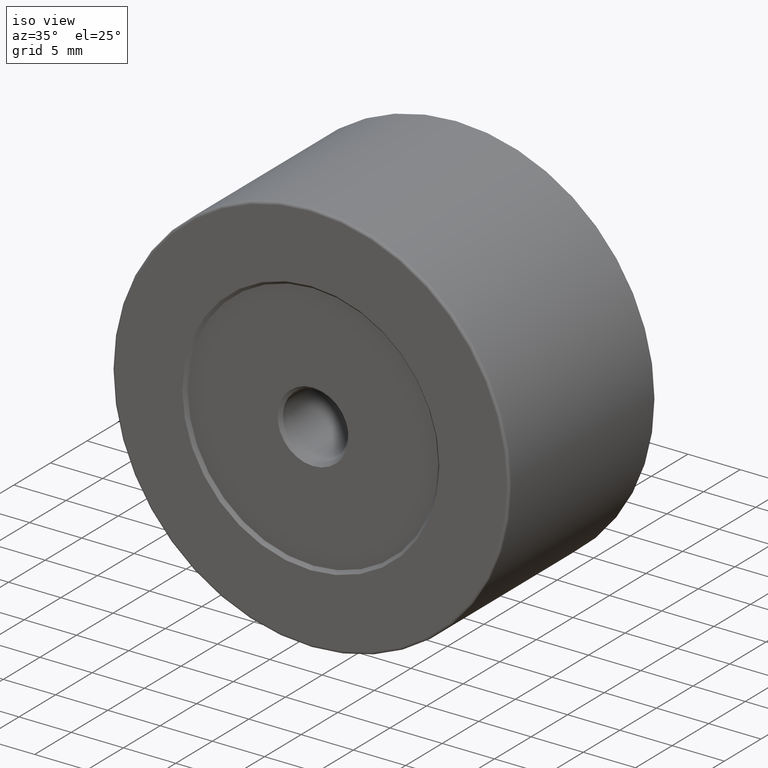
[diagram: clean part render]
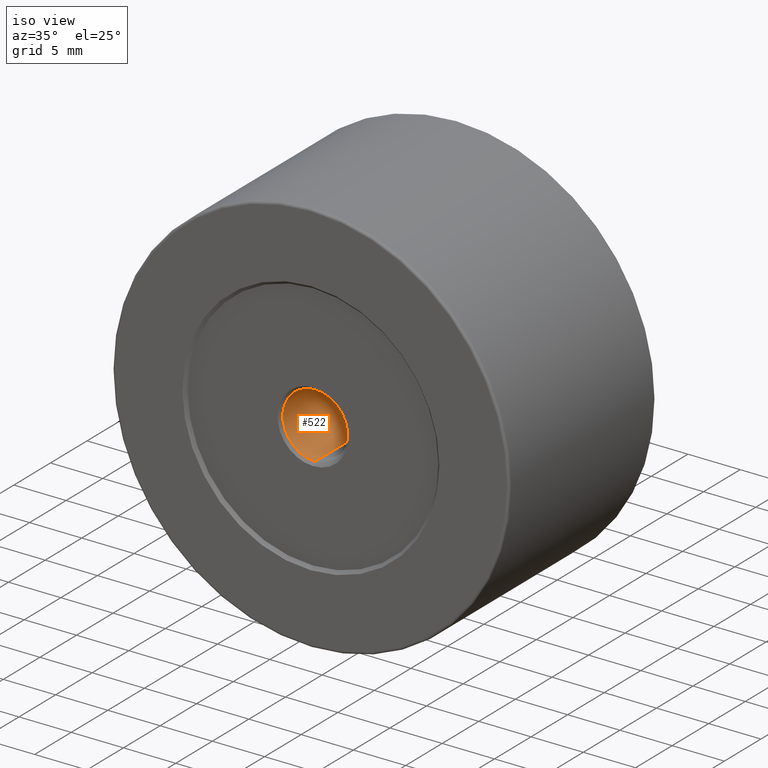
[diagram: same view with one face highlighted and labeled with its STEP entity id]
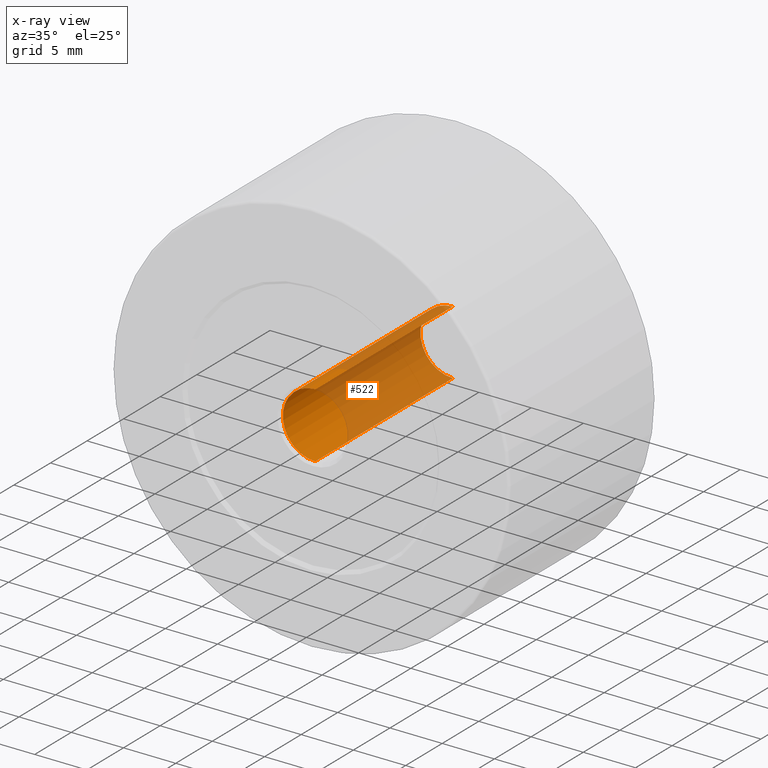
[diagram: x-ray of the same camera — body ghosted, the highlighted face saturated]
A machine part, iso view. The second image highlights one B-rep face of the part: STEP entity #522.
The next image is the same camera in x-ray: the body ghosted, the highlighted face saturated — about 68% of this face is hidden behind the body in this view.
In plain terms, the highlighted cylindrical surface (partial cylindrical patch) has radius 3.1 mm, axis along (-0, 1, -0).
Its self-contained STEP definition (entity closure, byte-faithful):
#4 = EDGE_CURVE ( 'NONE', #277, #581, #45, .T. ) ;
#7 = FACE_OUTER_BOUND ( 'NONE', #402, .T. ) ;
#13 = CARTESIAN_POINT ( 'NONE',  ( -7.546808913101048510, -12.29359512730272819, 41.09999999999999432 ) ) ;
#45 = LINE ( 'NONE', #193, #492 ) ;
#46 = CARTESIAN_POINT ( 'NONE',  ( -7.546808913101048510, -12.89359512730272783, 38.00000000000000000 ) ) ;
#60 = DIRECTION ( 'NONE',  ( 0.000000000000000000, 0.000000000000000000, 1.000000000000000000 ) ) ;
#161 = AXIS2_PLACEMENT_3D ( 'NONE', #46, #236, #60 ) ;
#167 = CARTESIAN_POINT ( 'NONE',  ( -7.546808913101048510, 6.506404872697258313, 38.00000000000000000 ) ) ;
#179 = EDGE_CURVE ( 'NONE', #277, #226, #446, .T. ) ;
#188 = ORIENTED_EDGE ( 'NONE', *, *, #179, .T. ) ;
#193 = CARTESIAN_POINT ( 'NONE',  ( -7.546808913101048510, -12.89359512730272783, 41.09999999999999432 ) ) ;
#194 = AXIS2_PLACEMENT_3D ( 'NONE', #306, #588, #202 ) ;
#200 = ORIENTED_EDGE ( 'NONE', *, *, #285, .T. ) ;
#202 = DIRECTION ( 'NONE',  ( 0.000000000000000000, 0.000000000000000000, -1.000000000000000000 ) ) ;
#214 = ORIENTED_EDGE ( 'NONE', *, *, #225, .T. ) ;
#225 = EDGE_CURVE ( 'NONE', #275, #581, #558, .T. ) ;
#226 = VERTEX_POINT ( 'NONE', #310 ) ;
#236 = DIRECTION ( 'NONE',  ( -0.000000000000000000, 1.000000000000000000, -0.000000000000000000 ) ) ;
#241 = VECTOR ( 'NONE', #375, 1000.000000000000000 ) ;
#275 = VERTEX_POINT ( 'NONE', #300 ) ;
#277 = VERTEX_POINT ( 'NONE', #13 ) ;
#280 = CARTESIAN_POINT ( 'NONE',  ( -7.546808913101048510, -12.89359512730272783, 34.89999999999999858 ) ) ;
#285 = EDGE_CURVE ( 'NONE', #226, #275, #555, .T. ) ;
#289 = CARTESIAN_POINT ( 'NONE',  ( -7.546808913101048510, 6.506404872697258313, 41.09999999999999432 ) ) ;
#300 = CARTESIAN_POINT ( 'NONE',  ( -7.546808913101048510, 6.506404872697258313, 34.89999999999999858 ) ) ;
#306 = CARTESIAN_POINT ( 'NONE',  ( -7.546808913101048510, -12.29359512730272819, 38.00000000000000000 ) ) ;
#310 = CARTESIAN_POINT ( 'NONE',  ( -7.546808913101048510, -12.29359512730272819, 34.89999999999999858 ) ) ;
#375 = DIRECTION ( 'NONE',  ( -0.000000000000000000, 1.000000000000000000, -0.000000000000000000 ) ) ;
#379 = ORIENTED_EDGE ( 'NONE', *, *, #4, .F. ) ;
#387 = DIRECTION ( 'NONE',  ( 0.000000000000000000, 0.000000000000000000, 1.000000000000000000 ) ) ;
#402 = EDGE_LOOP ( 'NONE', ( #188, #200, #214, #379 ) ) ;
#446 = CIRCLE ( 'NONE', #194, 3.099999999999998757 ) ;
#492 = VECTOR ( 'NONE', #526, 1000.000000000000000 ) ;
#504 = AXIS2_PLACEMENT_3D ( 'NONE', #167, #543, #387 ) ;
#522 = ADVANCED_FACE ( 'NONE', ( #7 ), #612, .F. ) ;
#526 = DIRECTION ( 'NONE',  ( -0.000000000000000000, 1.000000000000000000, -0.000000000000000000 ) ) ;
#543 = DIRECTION ( 'NONE',  ( 0.000000000000000000, 1.000000000000000000, 0.000000000000000000 ) ) ;
#555 = LINE ( 'NONE', #280, #241 ) ;
#558 = CIRCLE ( 'NONE', #504, 3.099999999999998757 ) ;
#581 = VERTEX_POINT ( 'NONE', #289 ) ;
#588 = DIRECTION ( 'NONE',  ( -0.000000000000000000, -1.000000000000000000, -0.000000000000000000 ) ) ;
#612 = CYLINDRICAL_SURFACE ( 'NONE', #161, 3.099999999999998757 ) ;